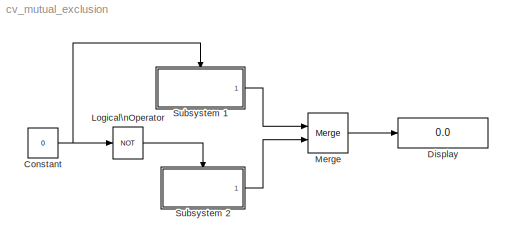
MODEL cv_mutual_exclusion
KIND model
BLOCK [Constant] Constant
  Value = 0
BLOCK [Display] Display
  Decimation = 1
  Ports = [1]
BLOCK [Logic] Logical\nOperator
  AllPortsSameDT = off
  Operator = NOT
  OutDataTypeMode = Boolean
  Ports = [1, 1]
BLOCK [Merge] Merge
  Ports = [2, 1]
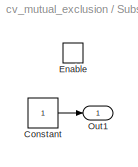
BLOCK [SubSystem] Subsystem 1
  MinAlgLoopOccurrences = off
  Ports = [0, 1, 1]
  PropExecContextAcrossSSBoundary = on
  RTWSystemCode = Auto
  TreatAsAtomicUnit = off
BLOCK [Constant] Subsystem 1/Constant
BLOCK [EnablePort] Subsystem 1/Enable
  Ports = []
BLOCK [Outport] Subsystem 1/Out1
  IconDisplay = Port number
  InitialOutput = 0
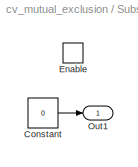
BLOCK [SubSystem] Subsystem 2
  MinAlgLoopOccurrences = off
  Ports = [0, 1, 1]
  PropExecContextAcrossSSBoundary = on
  RTWSystemCode = Auto
  TreatAsAtomicUnit = off
BLOCK [Constant] Subsystem 2/Constant
  Value = 0
BLOCK [EnablePort] Subsystem 2/Enable
  Ports = []
BLOCK [Outport] Subsystem 2/Out1
  IconDisplay = Port number
  InitialOutput = 0
NET Constant:1 -> Logical\nOperator:1, Subsystem 1:enable
LINE Logical\nOperator:1 -> Subsystem 2:enable
LINE Merge:1 -> Display:1
LINE Subsystem 1/Constant:1 -> Subsystem 1/Out1:1
LINE Subsystem 1:1 -> Merge:1
LINE Subsystem 2/Constant:1 -> Subsystem 2/Out1:1
LINE Subsystem 2:1 -> Merge:2
note: NET lines group one-source signal fan-out (src -> all destinations, sorted); 1:1 wires keep LINE
